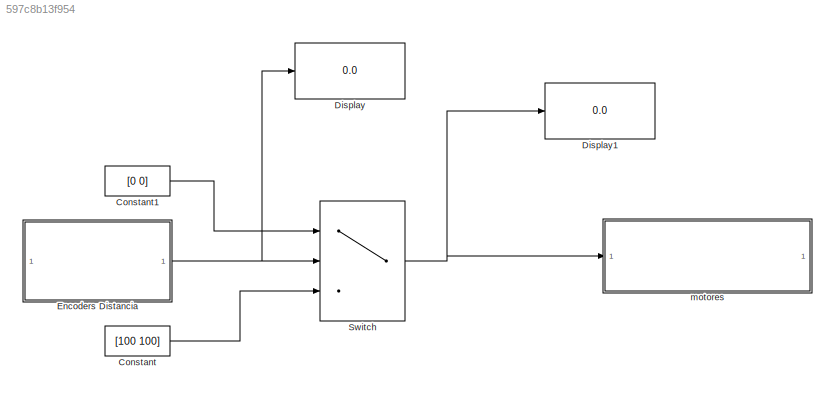
MODEL slx_597c8b13f954
KIND model
CONFIG AbsTol = auto
CONFIG EnableMultiTasking = on
CONFIG FixedStep = 0.01
CONFIG MaxStep = auto
CONFIG MinStep = auto
CONFIG RelTol = 1e-3
CONFIG SampleTimeConstraint = Unconstrained
CONFIG SolverName = FixedStepDiscrete
CONFIG StartTime = 0.0
CONFIG StopTime = inf
BLOCK [Constant] Constant
  Value = [100 100]
BLOCK [Constant] Constant1
  Value = [0 0]
BLOCK [Display] Display
  Decimation = 1
BLOCK [Display] Display1
  Decimation = 1
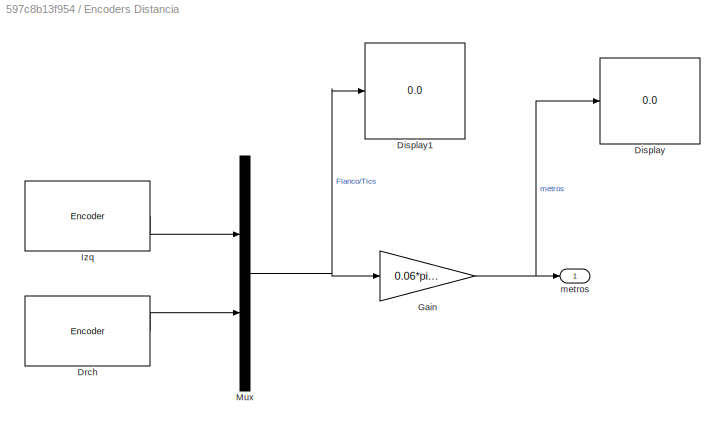
BLOCK [SubSystem] Encoders Distancia
BLOCK [Display] Encoders Distancia/Display
  Decimation = 1
BLOCK [Display] Encoders Distancia/Display1
  Decimation = 1
BLOCK [Reference] Encoders Distancia/Drch  REF=arduinosensorlib/Encoder
  SourceBlock = arduinosensorlib/Encoder
  SourceType = Arduino Rotary Encoder
BLOCK [Gain] Encoders Distancia/Gain
  Gain = 0.06*pi/1960
  ParamDataTypeStr = double
BLOCK [Reference] Encoders Distancia/Izq  REF=arduinosensorlib/Encoder
  SourceBlock = arduinosensorlib/Encoder
  SourceType = Arduino Rotary Encoder
BLOCK [Mux] Encoders Distancia/Mux
  DisplayOption = bar
  Inputs = 2
BLOCK [Outport] Encoders Distancia/metros
BLOCK [Switch] Switch
  Criteria = u2 > Threshold
  InputSameDT = off
  SaturateOnIntegerOverflow = off
  Threshold = 4.1
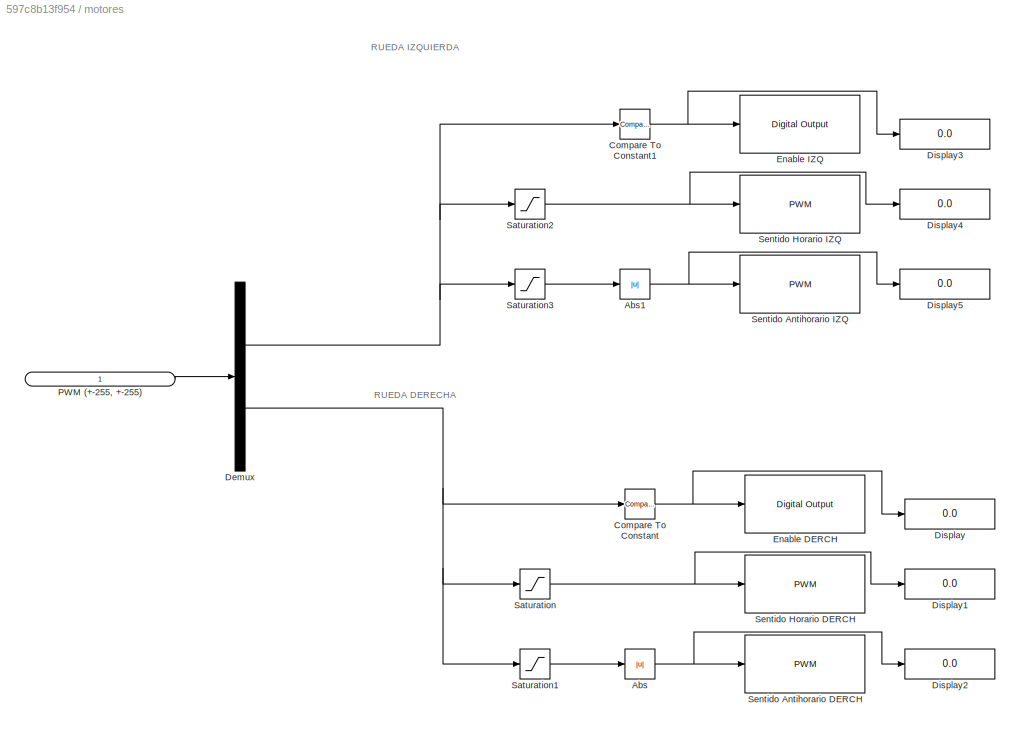
BLOCK [SubSystem] motores
BLOCK [Abs] motores/Abs
  SaturateOnIntegerOverflow = off
BLOCK [Abs] motores/Abs1
  SaturateOnIntegerOverflow = off
BLOCK [Reference] motores/Compare To Constant  REF=simulink/Logic and Bit
Operations/Compare
To Constant
  SourceBlock = simulink/Logic and Bit\nOperations/Compare\nTo Constant
  SourceType = Compare To Constant
BLOCK [Reference] motores/Compare To Constant1  REF=simulink/Logic and Bit
Operations/Compare
To Constant
  SourceBlock = simulink/Logic and Bit\nOperations/Compare\nTo Constant
  SourceType = Compare To Constant
BLOCK [Demux] motores/Demux
  Outputs = 2
BLOCK [Display] motores/Display
  Decimation = 1
BLOCK [Display] motores/Display1
  Decimation = 1
BLOCK [Display] motores/Display2
  Decimation = 1
BLOCK [Display] motores/Display3
  Decimation = 1
BLOCK [Display] motores/Display4
  Decimation = 1
BLOCK [Display] motores/Display5
  Decimation = 1
BLOCK [Reference] motores/Enable DERCH  REF=arduinolib/Digital Output
  SourceBlock = arduinolib/Digital Output
  SourceType = Arduino Digital Output
BLOCK [Reference] motores/Enable IZQ  REF=arduinolib/Digital Output
  SourceBlock = arduinolib/Digital Output
  SourceType = Arduino Digital Output
BLOCK [Inport] motores/PWM (+-255, +-255)
BLOCK [Saturate] motores/Saturation
  LowerLimit = 0
  UpperLimit = 255
BLOCK [Saturate] motores/Saturation1
  LowerLimit = -255
  UpperLimit = 0
BLOCK [Saturate] motores/Saturation2
  LowerLimit = 0
  UpperLimit = 255
BLOCK [Saturate] motores/Saturation3
  LowerLimit = -255
  UpperLimit = 0
BLOCK [Reference] motores/Sentido Antihorario DERCH  REF=arduinolib/PWM
  SourceBlock = arduinolib/PWM
  SourceType = Arduino PWM
BLOCK [Reference] motores/Sentido Antihorario IZQ  REF=arduinolib/PWM
  SourceBlock = arduinolib/PWM
  SourceType = Arduino PWM
BLOCK [Reference] motores/Sentido Horario DERCH  REF=arduinolib/PWM
  SourceBlock = arduinolib/PWM
  SourceType = Arduino PWM
BLOCK [Reference] motores/Sentido Horario IZQ  REF=arduinolib/PWM
  SourceBlock = arduinolib/PWM
  SourceType = Arduino PWM
ANNOTATION motores: RUEDA DERECHA
ANNOTATION motores: RUEDA IZQUIERDA
LINE Constant1:1 -> Switch:1
LINE Constant:1 -> Switch:3
LINE Encoders Distancia/Drch:1 -> Encoders Distancia/Mux:2
NET Encoders Distancia/Gain:1 -> Encoders Distancia/Display:1, Encoders Distancia/metros:1
LINE Encoders Distancia/Izq:1 -> Encoders Distancia/Mux:1
NET Encoders Distancia/Mux:1 -> Encoders Distancia/Display1:1, Encoders Distancia/Gain:1
NET Encoders Distancia:1 -> Display:1, Switch:2
NET Switch:1 -> Display1:1, motores:1
NET motores/Abs1:1 -> motores/Display5:1, motores/Sentido Antihorario IZQ:1
NET motores/Abs:1 -> motores/Display2:1, motores/Sentido Antihorario DERCH:1
NET motores/Compare To Constant1:1 -> motores/Display3:1, motores/Enable IZQ:1
NET motores/Compare To Constant:1 -> motores/Display:1, motores/Enable DERCH:1
NET motores/Demux:1 -> motores/Compare To Constant1:1, motores/Saturation2:1, motores/Saturation3:1
NET motores/Demux:2 -> motores/Compare To Constant:1, motores/Saturation1:1, motores/Saturation:1
LINE motores/PWM (+-255, +-255):1 -> motores/Demux:1
LINE motores/Saturation1:1 -> motores/Abs:1
NET motores/Saturation2:1 -> motores/Display4:1, motores/Sentido Horario IZQ:1
LINE motores/Saturation3:1 -> motores/Abs1:1
NET motores/Saturation:1 -> motores/Display1:1, motores/Sentido Horario DERCH:1
note: NET lines group one-source signal fan-out (src -> all destinations, sorted); 1:1 wires keep LINE
